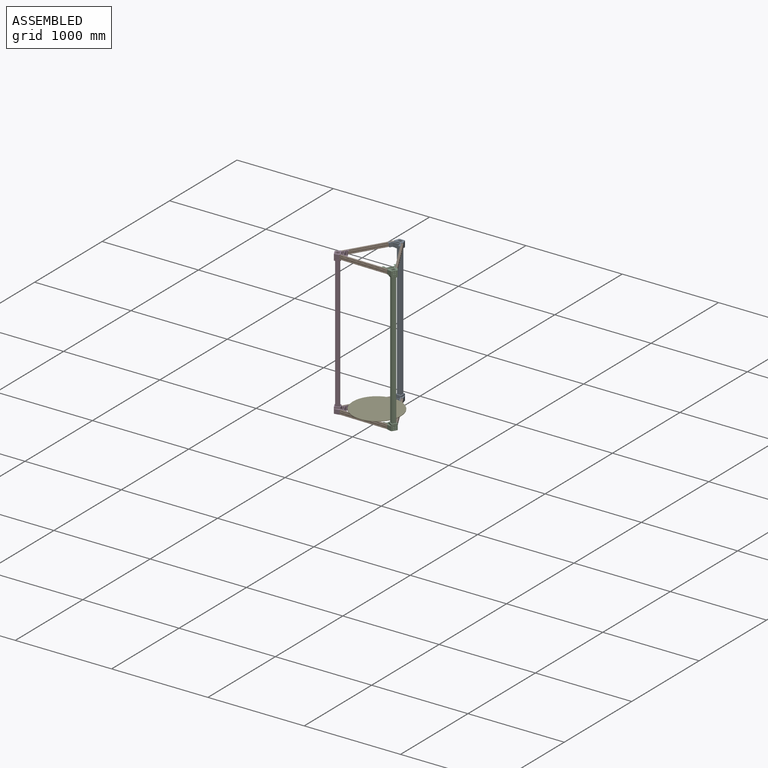
[diagram: assembled view]
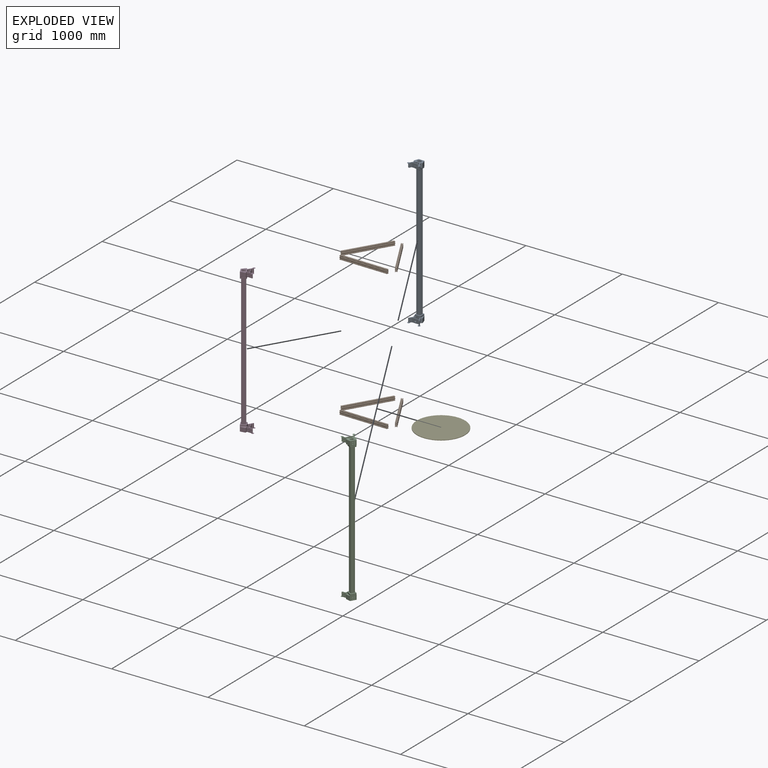
[diagram: exploded view]
GUIDED TOUR — MATED ASSEMBLY WITH SUBASSEMBLIES (Onshape document 57f339af546dad10b447824a, AutoMate assembly 57f339af546dad10b447824a_9c79bd40bd12733219195c9b_e9b3cc5fddb4a0eafcfcd37a_default)

This assembly has 16 component occurrences arranged in 5 top-level units: 1 individual components plus 4 subassemblies (S0, S1, S2, S3). The tour has two levels: first the top level, where each subassembly is treated as one rigid unit; then each subassembly is toured internally in its own section (nesting deeper than one subassembly level is flattened into its subassembly's section).

Components are labeled P0..P15 across the whole record; subassembly units are labeled S0..S3. A mate is a constraint between two units; its type names the relative motion it leaves free:
  FASTENED — locks the two components together rigidly (no relative motion),
  PIN_SLOT — leaves rotation about the listed axis plus translation along a slot free,
  PLANAR — leaves sliding in the plane through the listed point (normal = the listed direction) and rotation about that normal free.
Axis/direction vectors are unit vectors and 'through' points are millimeter coordinates, both in the assembly's world frame.

TOP-LEVEL MATES (between units; each subassembly's internal mates are listed in its own section)
  1. PLANAR "Planar 2": S1 <-> S2, direction (-0.873, -0.487, 0.000) through (192.73, 399.21, -29.00) mm
  2. PIN_SLOT "Pin slot 5": S1 <-> S3, axis (-0.513, -0.858, 0.000) through (-254.05, 194.38, -19.00) mm
  3. PIN_SLOT "Pin slot 8": S1 <-> S0, axis (-0.487, 0.873, 0.000) through (79.72, 622.44, 1436.00) mm
  4. PLANAR "Planar 1": S1 <-> S0, direction (-0.873, -0.487, 0.000) through (192.73, 399.21, -29.00) mm
  5. PLANAR "Planar 5": S1 <-> S3, direction (0.858, -0.513, 0.000) through (-117.24, 403.86, -29.00) mm
  6. PLANAR "Planar 11": S1 <-> S2, direction (-0.873, -0.487, 0.000) through (192.73, 399.21, 1426.00) mm
  7. PIN_SLOT "Pin slot 4": S1 <-> S0, axis (0.487, -0.873, 0.000) through (79.72, 622.44, -19.00) mm
  8. PLANAR "Planar 12": P12 <-> S0, direction (0.000, 0.000, -1.000) through (34.66, 312.58, -6.50) mm
  9. PIN_SLOT "Pin slot 1": S1 <-> S3, axis (-1.000, 0.015, 0.000) through (-216.40, 126.85, -19.00) mm
  10. PIN_SLOT "Pin slot 2": S1 <-> S2, axis (1.000, -0.015, 0.000) through (283.54, 119.35, -19.00) mm
  11. PLANAR "Planar 6": S1 <-> S0, direction (0.858, -0.513, 0.000) through (-117.24, 403.86, -29.00) mm
  12. PIN_SLOT "Pin slot 3": S1 <-> S2, axis (0.487, -0.873, 0.000) through (323.20, 185.72, -19.00) mm
  13. PLANAR "Planar 7": S1 <-> S0, direction (0.858, -0.513, 0.000) through (-117.24, 403.86, 1426.00) mm
  14. PIN_SLOT "Pin slot 7": S1 <-> S2, axis (1.000, -0.015, 0.000) through (283.54, 119.35, 1436.00) mm
  15. PLANAR "Planar 3": S1 <-> S2, direction (0.015, 1.000, 0.000) through (33.72, 133.10, -29.00) mm
  16. PLANAR "Planar 4": S3 <-> S1, direction (-0.015, -1.000, 0.000) through (-187.12, 136.41, -29.00) mm
  17. PIN_SLOT "Pin slot 6": S1 <-> S0, axis (-0.513, -0.858, 0.000) through (2.41, 623.60, 1436.00) mm
  18. PLANAR "Planar 9": S1 <-> S3, direction (0.015, 1.000, 0.000) through (33.72, 133.10, 1426.00) mm
  19. PLANAR "Planar 8": S1 <-> S3, direction (0.858, -0.513, 0.000) through (-117.24, 403.86, 1426.00) mm

TOP-LEVEL ASSEMBLY ORDER
  1. S1 — the base component [order heuristic]
  2. S2 — core [order heuristic]
  3. S0 — core [order heuristic]
  4. S3 — core [order heuristic]
  5. P12 [order verified]
Order-tag legend:
  [order verified] — this step's position reverses a verified removal order: the component was checked to insert without passing through the ones already placed.
  [order heuristic] — the first 4 components form the assembly's core: parts whose collision-free extraction could not be verified, listed in mate-graph order.

Of the 16 component occurrences, 1 carries the full construction recipe — the FeatureScript program that regenerates the part's solid from scratch; the rest are supplied as boundary geometry only. Each toured unit is shown spotlighted twice — assembled, then exploded with a leader line back to its socket (green = recipe-attached component, orange = geometry-only, blue = subassembly unit; the rest desaturated gray).
NOTE — this tour is split across 2 documents so each fits a 32k-token context. This is document 1: the component sections continue in the remaining 1 document, each repeating the header above.
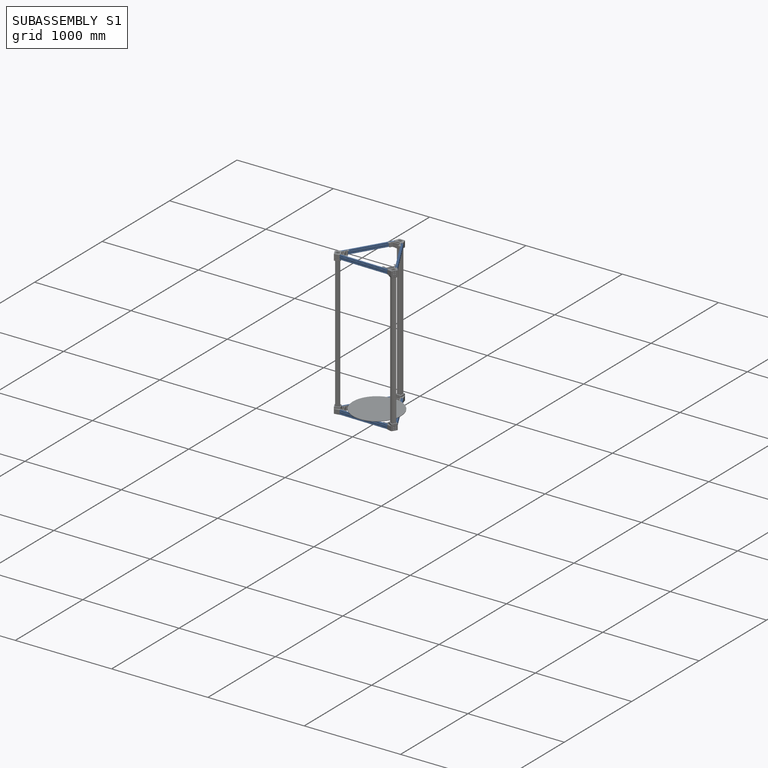
[diagram: subassembly S1 — assembled]
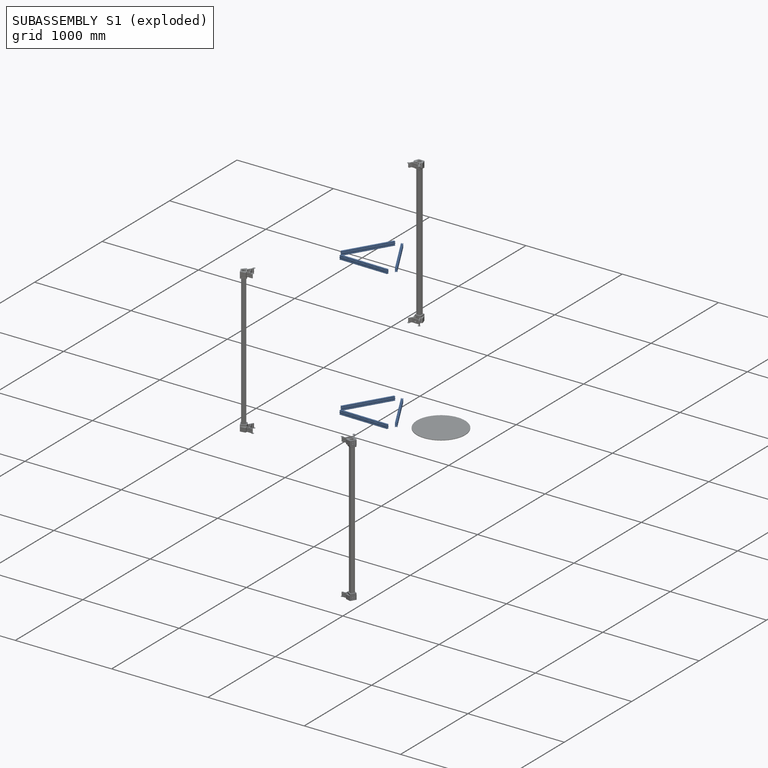
[diagram: subassembly S1 — exploded]
SUBASSEMBLY S1 — 6 components (P1, P2, P5, P7, P8, P15), of which 0 recipe-attached; toured below.
Held by: PLANAR mate "Planar 2" to S2; PIN_SLOT mate "Pin slot 5" to S3; PIN_SLOT mate "Pin slot 8" to S0; PLANAR mate "Planar 1" to S0; PLANAR mate "Planar 5" to S3; PLANAR mate "Planar 11" to S2; PIN_SLOT mate "Pin slot 4" to S0; PIN_SLOT mate "Pin slot 1" to S3; PIN_SLOT mate "Pin slot 2" to S2; PLANAR mate "Planar 6" to S0; PIN_SLOT mate "Pin slot 3" to S2; PLANAR mate "Planar 7" to S0; PIN_SLOT mate "Pin slot 7" to S2; PLANAR mate "Planar 3" to S2; PLANAR mate "Planar 4" to S3; PIN_SLOT mate "Pin slot 6" to S0; PLANAR mate "Planar 9" to S3; PLANAR mate "Planar 8" to S3.
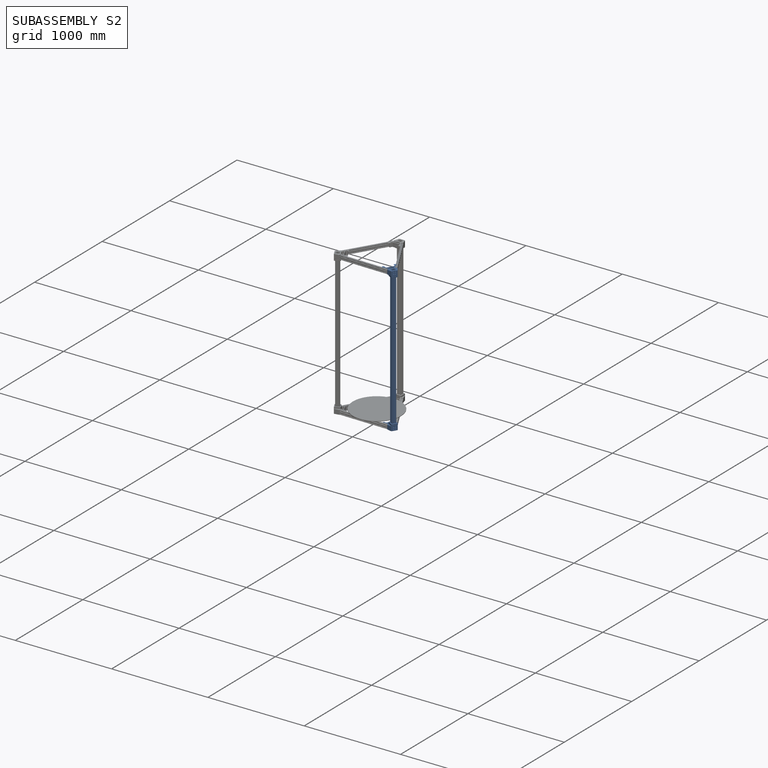
[diagram: subassembly S2 — assembled]
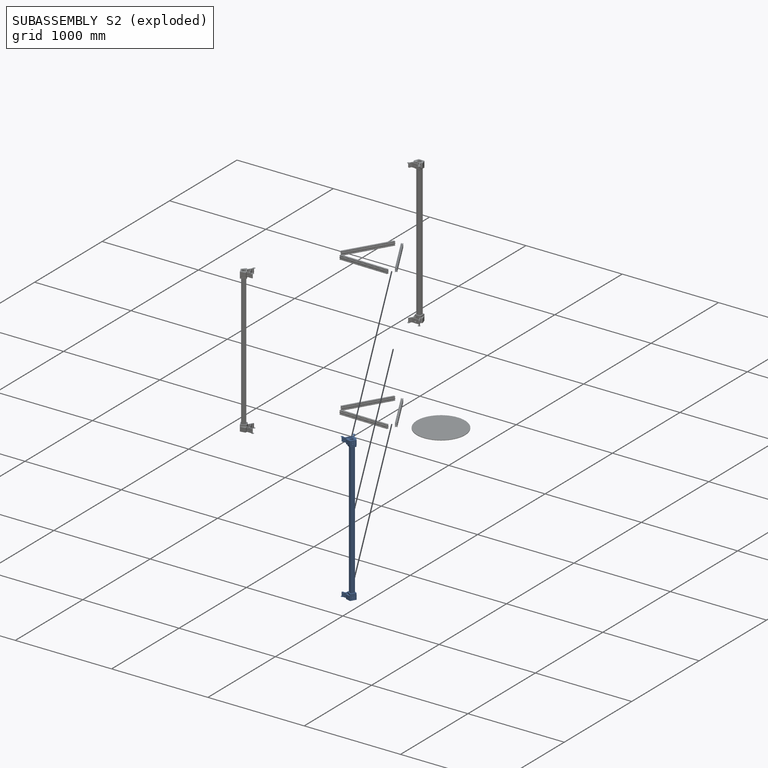
[diagram: subassembly S2 — exploded]
SUBASSEMBLY S2 — 3 components (P3, P10, P13), of which 0 recipe-attached; toured below.
Held by: PLANAR mate "Planar 2" to S1; PLANAR mate "Planar 11" to S1; PIN_SLOT mate "Pin slot 2" to S1; PIN_SLOT mate "Pin slot 3" to S1; PIN_SLOT mate "Pin slot 7" to S1; PLANAR mate "Planar 3" to S1.
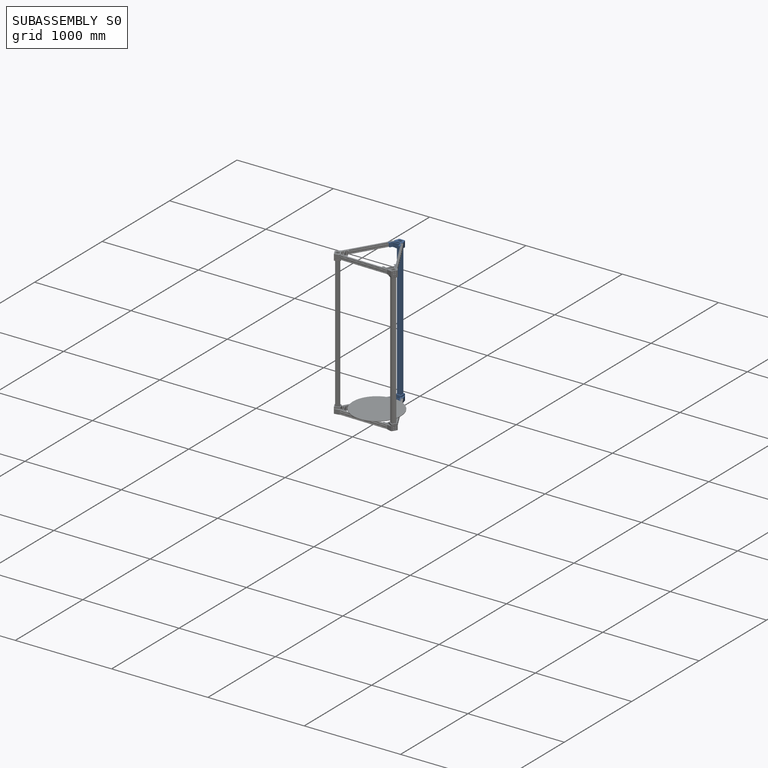
[diagram: subassembly S0 — assembled]
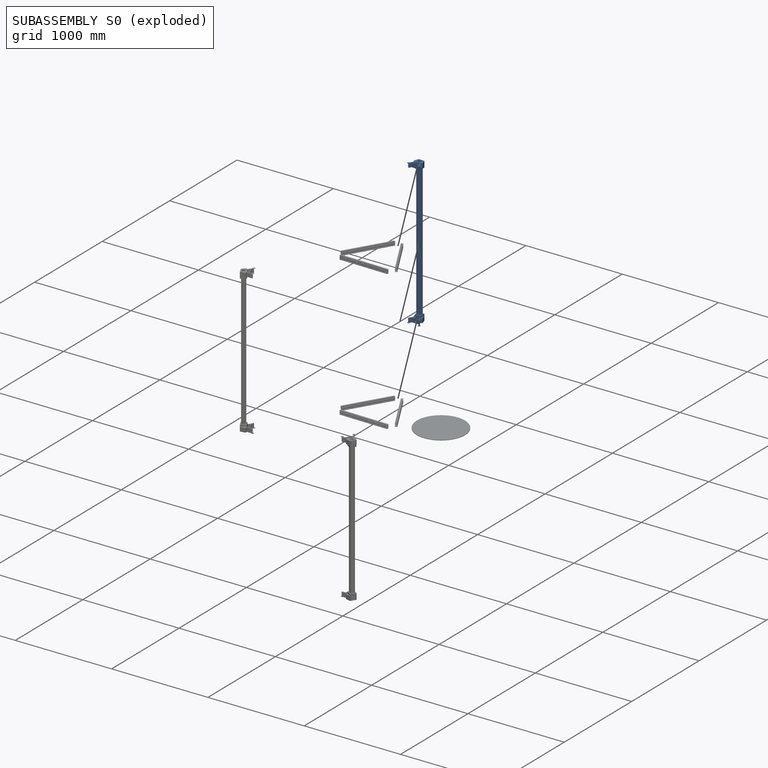
[diagram: subassembly S0 — exploded]
SUBASSEMBLY S0 — 3 components (P0, P6, P14), of which 0 recipe-attached; toured below.
Held by: PIN_SLOT mate "Pin slot 8" to S1; PLANAR mate "Planar 1" to S1; PIN_SLOT mate "Pin slot 4" to S1; PLANAR mate "Planar 12" to P12; PLANAR mate "Planar 6" to S1; PLANAR mate "Planar 7" to S1; PIN_SLOT mate "Pin slot 6" to S1.
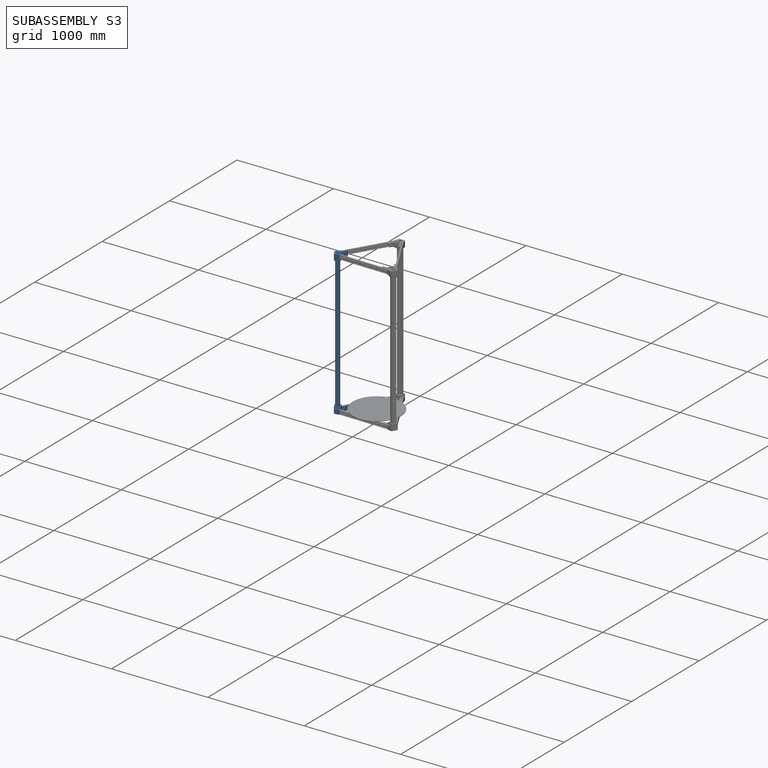
[diagram: subassembly S3 — assembled]
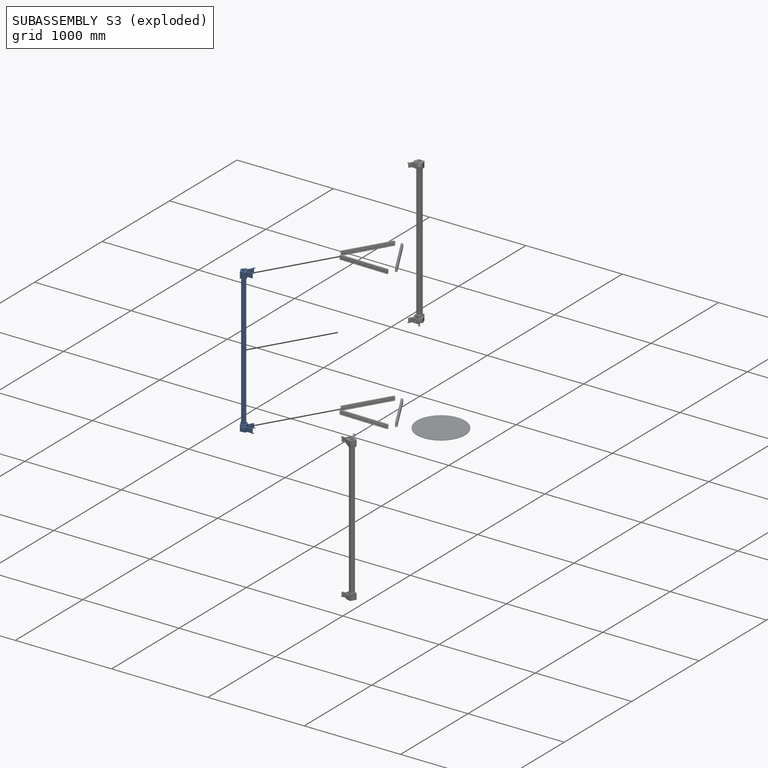
[diagram: subassembly S3 — exploded]
SUBASSEMBLY S3 — 3 components (P4, P9, P11), of which 0 recipe-attached; toured below.
Held by: PIN_SLOT mate "Pin slot 5" to S1; PLANAR mate "Planar 5" to S1; PIN_SLOT mate "Pin slot 1" to S1; PLANAR mate "Planar 4" to S1; PLANAR mate "Planar 9" to S1; PLANAR mate "Planar 8" to S1.
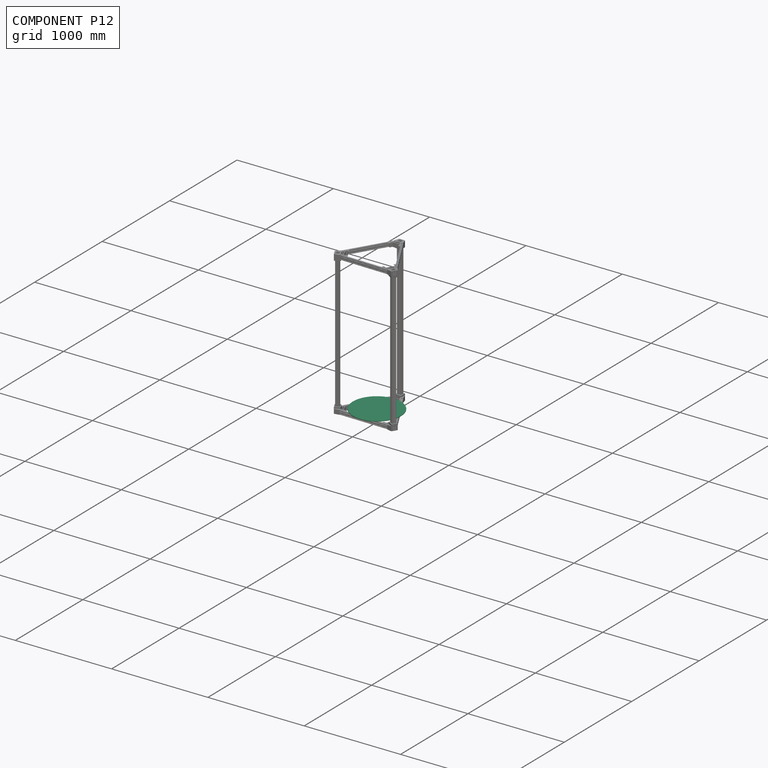
[diagram: component P12 — assembled]
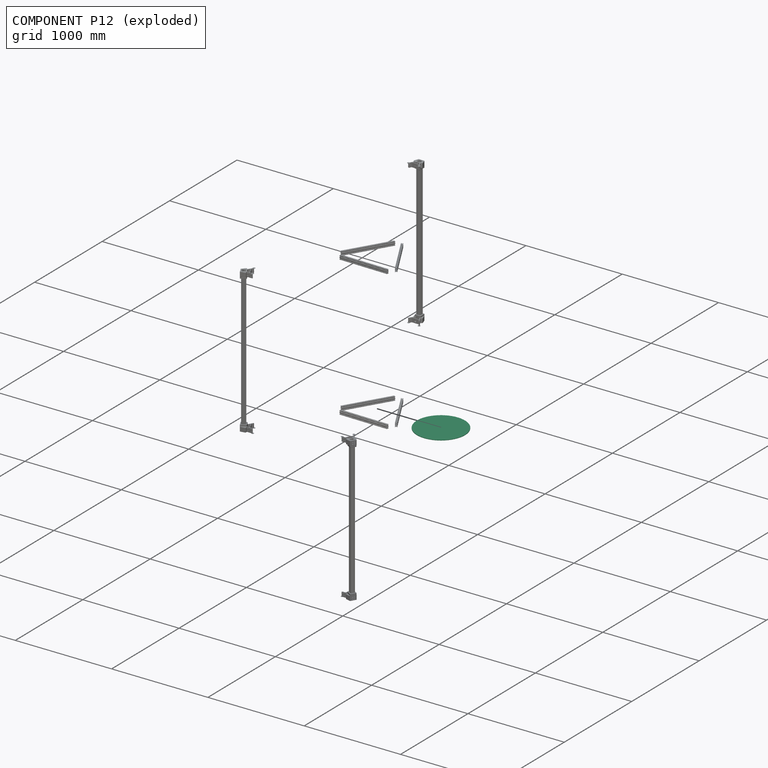
[diagram: component P12 — exploded]
COMPONENT P12 — recipe-attached (CADFS 00271816, mesh-verified: the recipe's output STEP matches this component's geometry to below the mesh-comparison resolution (tessellation chordal tolerance ~1.06 mm)).
Held by: PLANAR mate "Planar 12" to P0.
Construction recipe (FeatureScript — the CAD program that rebuilds this solid; sketch coordinates are in the units given by the * unit suffixes, e.g. mm):

FeatureScript 1511;
import(path : "onshape/std/geometry.fs", version : "1511.0");
import(path : "onshape/std/common.fs", version : "1511.0");
const mm = millimeter;
const VERTEX = EntityType.VERTEX;
const EDGE = EntityType.EDGE;
const FACE = EntityType.FACE;
const BODY = EntityType.BODY;
function v(x, y){return vector(x, y);}
function OD(order){return orderDisambiguation(order);}
function OSD(set){return originalSetDisambiguation(set);}
function TD(topology){return topologyDisambiguation(topology);}
function TDD(query){return trueDependencyDisambiguation(query);}
function sQuery(a, b, c) {return sketchEntityQuery(a, b, c);}

annotation { "Feature Type Name" : "Feature", "Feature Type Description" : "" }
export const myFeature = defineFeature(function(context is Context, id is Id, definition is map)
    precondition{}
    {
        {
            var Q0;
            Q0=qCreatedBy(makeId("Top.planeOp"),FACE);
            var sketch = newSketch(context, id + "F0", { "sketchPlane" : qUnion([Q0])});
            skCircle(sketch, "E0", {"center": v(0, 0) * mm, "radius": 250 * mm});
            skSolve(sketch);
        }
        {
            var Q0;
            Q0=qSketchRegion(id+"F0",true);
            extrude(context, id + "F1", {"entities" : qUnion([Q0]), "depth" : 6.5 * mm});
        }
        {
            var Q0;
            Q0=makeQuery(id+"F1.opExtrude","CAP_EDGE",EDGE,{"disambiguationData":[OSD([sQuery(id+"F0.wireOp",EDGE,"E0")])],"isStart":false});
            var Q1;
            Q1=makeQuery(id+"F1.opExtrude","CAP_EDGE",EDGE,{"disambiguationData":[OSD([sQuery(id+"F0.wireOp",EDGE,"E0")])],"isStart":true});
            fillet(context, id + "F2", {"entities" : qUnion([Q0, Q1]), "radius" : 1.5 * mm, "tangentPropagation" : true, "allowEdgeOverflow" : false});
        }
    });
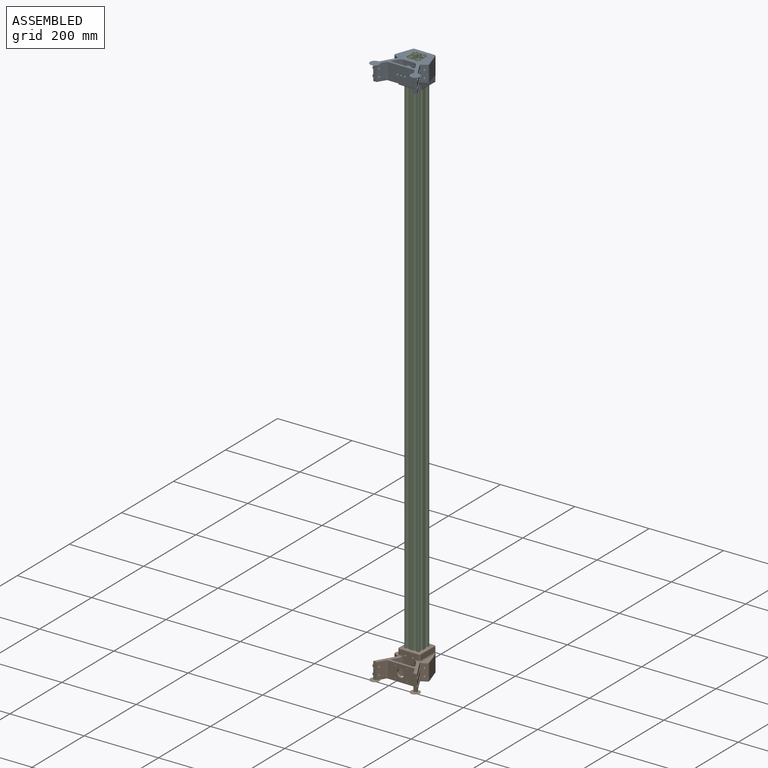
[diagram: subassembly S0 — assembled view]
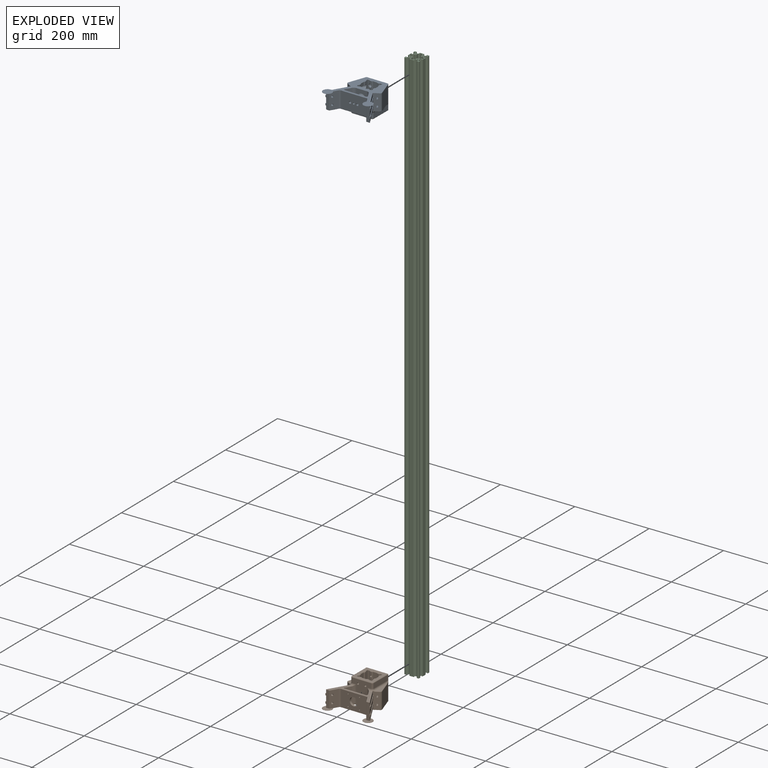
[diagram: subassembly S0 — exploded view]
SUBASSEMBLY S0 TOUR — 3 components, shown here in isolation at its own camera.

INTERNAL MATES
  1. FASTENED "Fastened 1": P6 <-> P14, direction (-0.015, -1.000, 0.000) through (41.74, 668.06, -51.50) mm
  2. FASTENED "Fastened 2": P0 <-> P14, direction (-0.015, -1.000, 0.000) through (41.74, 668.06, 1448.50) mm
  3. FASTENED "Fastened 2": P0 <-> P14, direction (-0.015, -1.000, 0.000) through (41.74, 668.06, 1448.50) mm
  4. FASTENED "Fastened 1": P6 <-> P14, direction (-0.015, -1.000, 0.000) through (41.74, 668.06, -51.50) mm

ASSEMBLY ORDER (within the subassembly)
  1. P14 — the base component [order verified]
  2. P6 [order verified]
  3. P0 [order verified]
Order-tag legend:
  [order verified] — this step's position reverses a verified removal order: the component was checked to insert without passing through the ones already placed.
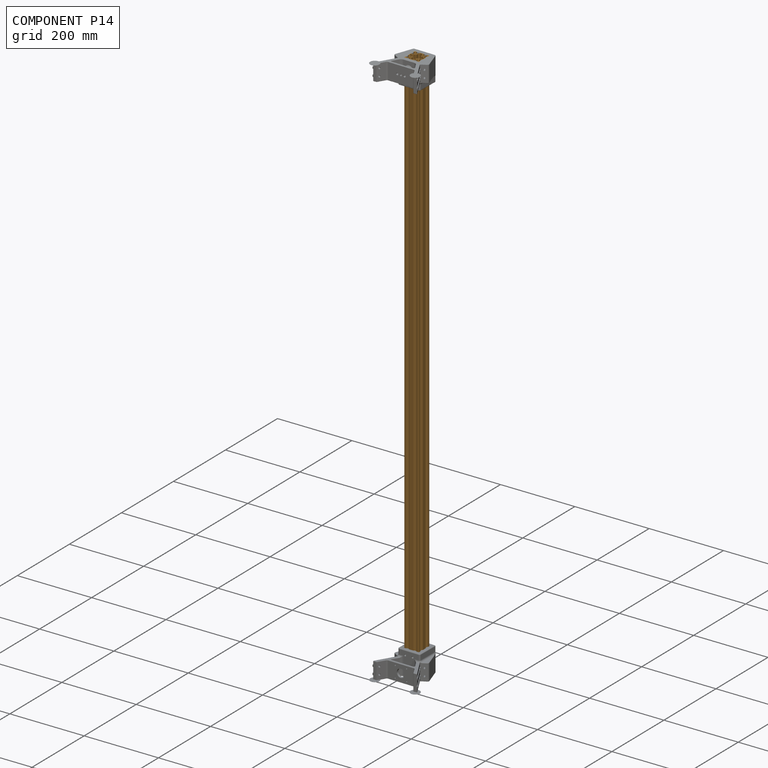
[diagram: component P14 — assembled]
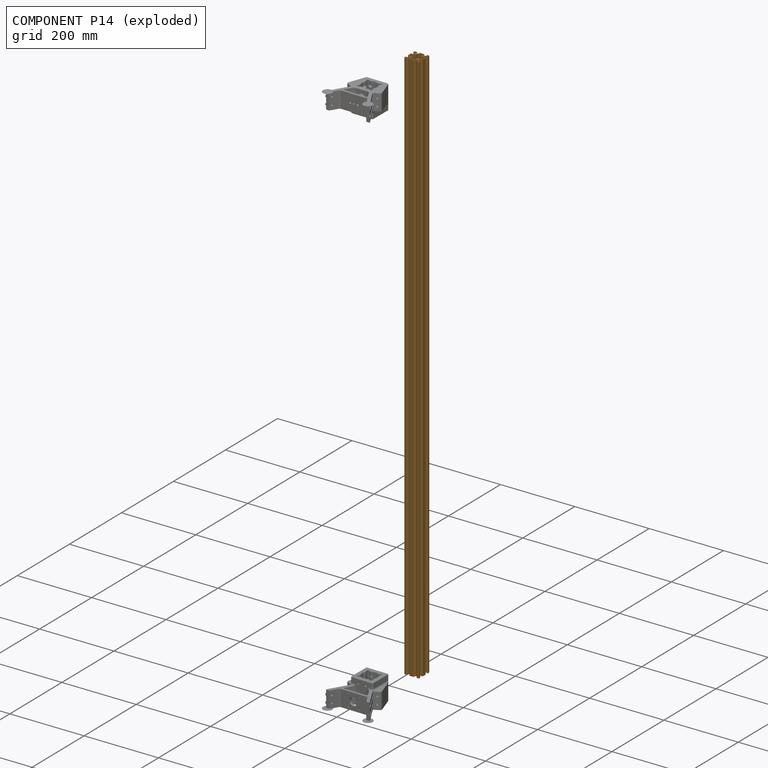
[diagram: component P14 — exploded]
COMPONENT P14 — geometry summary (no construction recipe available for this part):
  bounding box: 1500.0 x 53.5 x 53.5 mm
  B-rep topology: 1 solid, 166 faces, 992 edges
  volume: 687694 mm^3 (16% of its bounding box)
  symmetry: 2-fold rotationally symmetric about the x axis; 2-fold rotationally symmetric about the y axis; revolution-symmetric about the z axis through its bounding-box center; mirror-symmetric across its x mid-plane, y mid-plane, z mid-plane
Held by: FASTENED mate "Fastened 1" to P6; FASTENED mate "Fastened 2" to P0; FASTENED mate "Fastened 2" to P0; FASTENED mate "Fastened 1" to P6.
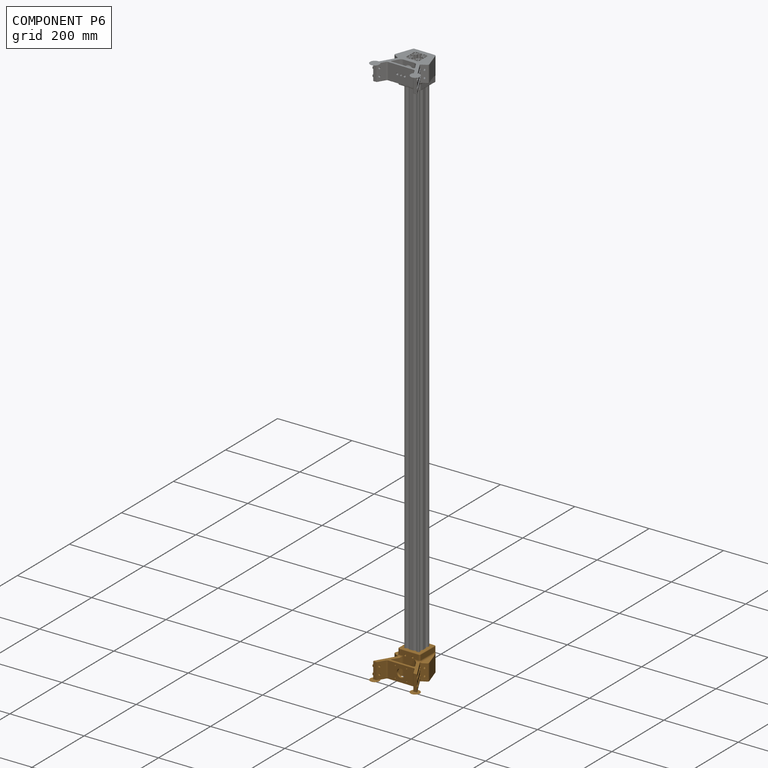
[diagram: component P6 — assembled]
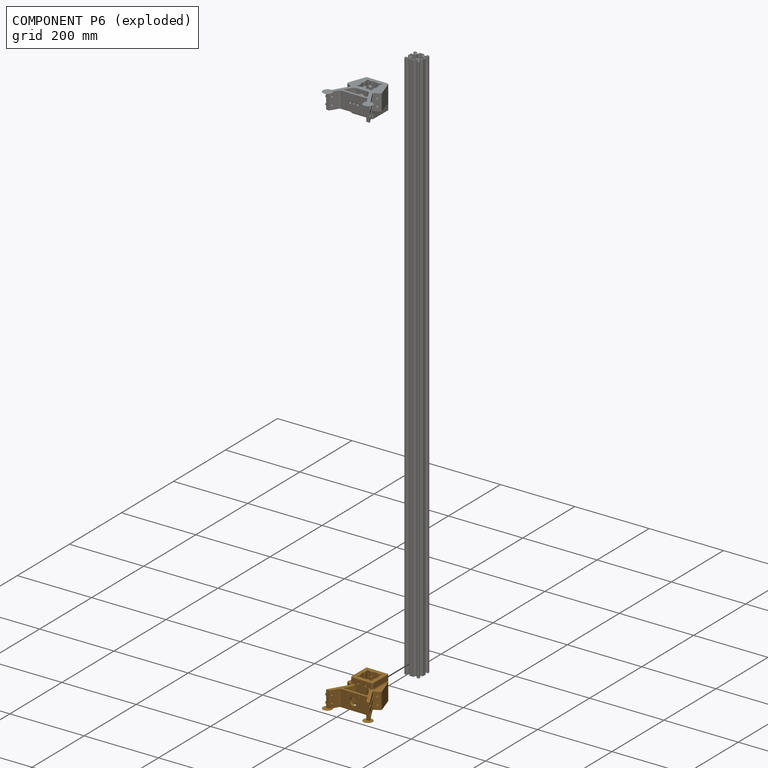
[diagram: component P6 — exploded]
COMPONENT P6 — geometry summary (no construction recipe available for this part):
  bounding box: 135.0 x 129.0 x 67.0 mm
  B-rep topology: 1 solid, 270 faces, 1492 edges
  volume: 234750 mm^3 (20% of its bounding box)
  symmetry: mirror-symmetric across its x mid-plane
Held by: FASTENED mate "Fastened 1" to P14; FASTENED mate "Fastened 1" to P14.
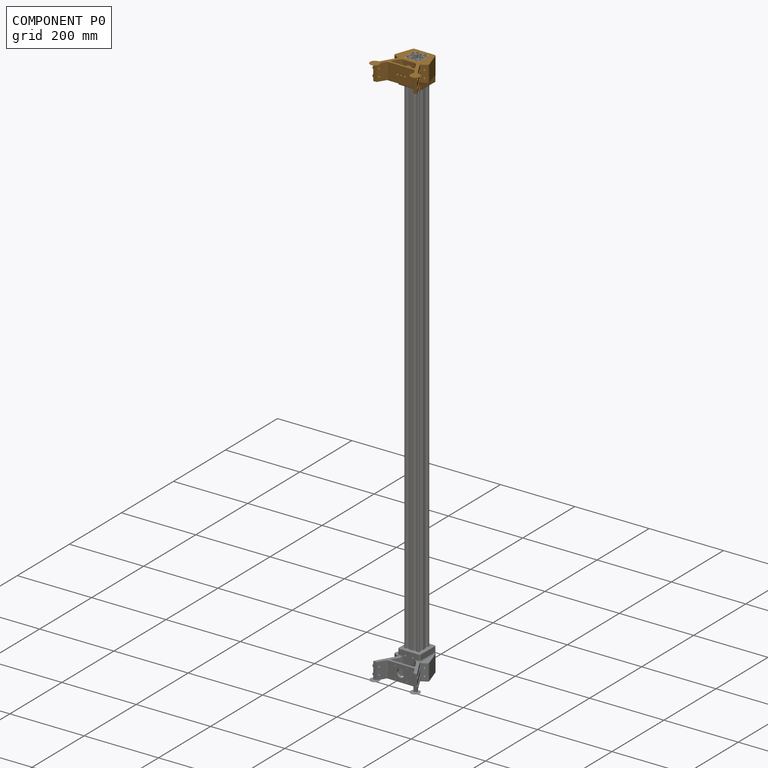
[diagram: component P0 — assembled]
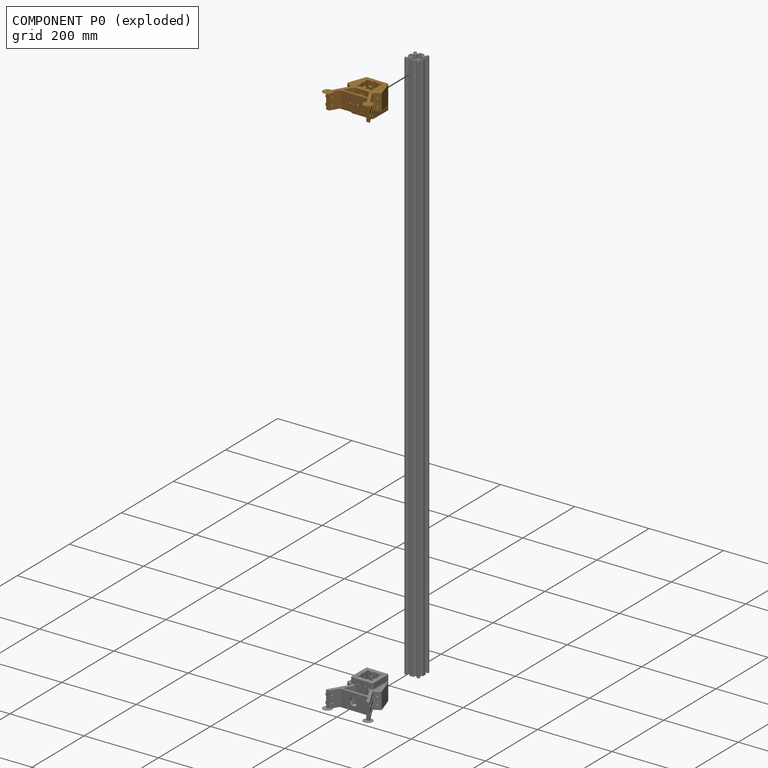
[diagram: component P0 — exploded]
COMPONENT P0 — geometry summary (no construction recipe available for this part):
  bounding box: 135.0 x 129.0 x 67.0 mm
  B-rep topology: 1 solid, 277 faces, 1530 edges
  volume: 238581 mm^3 (20% of its bounding box)
  symmetry: mirror-symmetric across its x mid-plane
Held by: FASTENED mate "Fastened 2" to P14; FASTENED mate "Fastened 2" to P14.
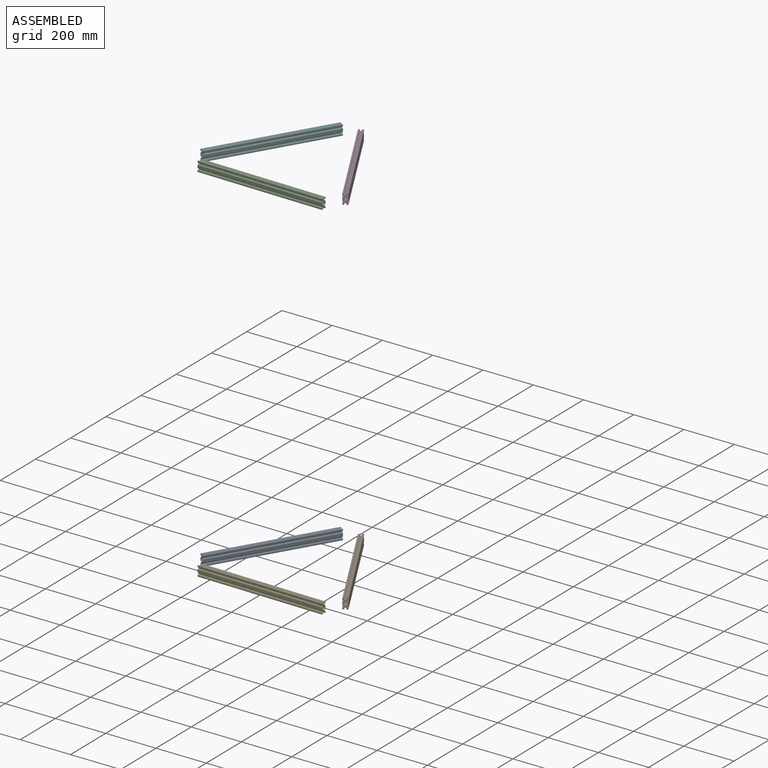
[diagram: subassembly S1 — assembled view]
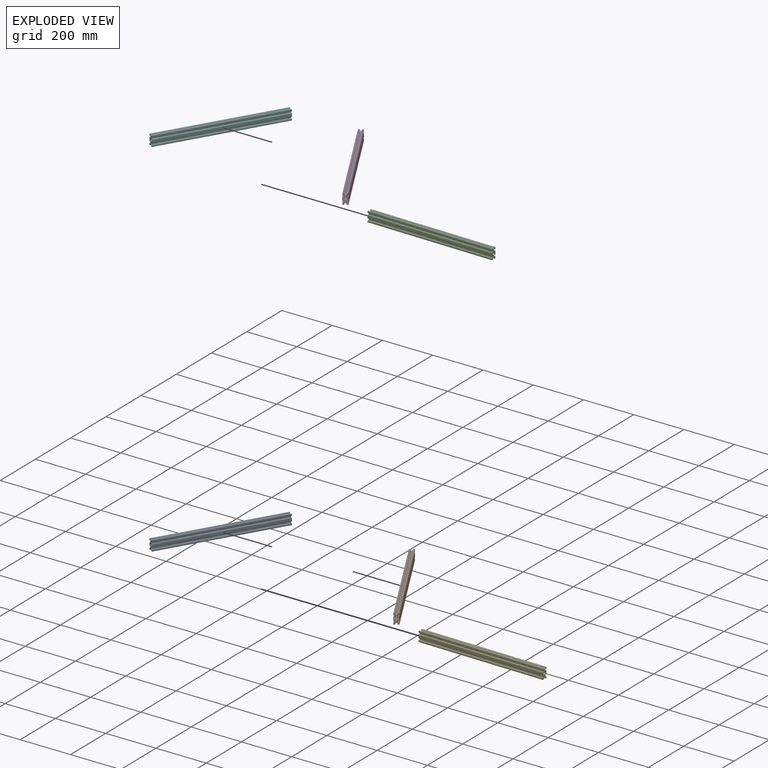
[diagram: subassembly S1 — exploded view]
SUBASSEMBLY S1 TOUR — 6 components, shown here in isolation at its own camera.
No internal mates are recorded for this subassembly; its components are held by their stored placements.

ASSEMBLY ORDER (within the subassembly)
  1. P7 — the base component [order verified]
  2. P2 [order verified]
  3. P1 [order verified]
  4. P15 [order verified]
  5. P5 [order verified]
  6. P8 [order verified]
Order-tag legend:
  [order verified] — this step's position reverses a verified removal order: the component was checked to insert without passing through the ones already placed.
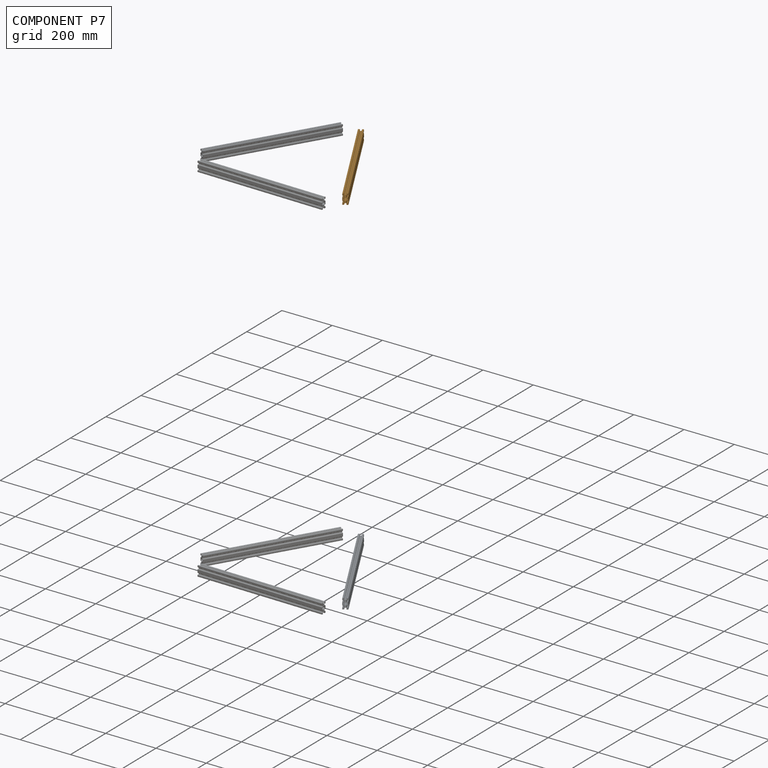
[diagram: component P7 — assembled]
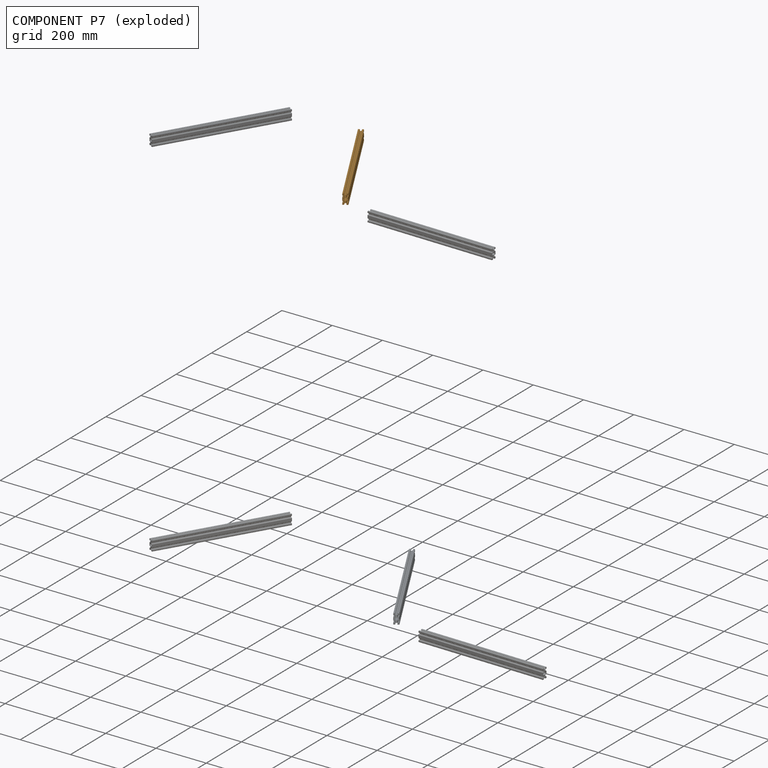
[diagram: component P7 — exploded]
COMPONENT P7 — geometry summary (no construction recipe available for this part):
  bounding box: 500.0 x 40.0 x 20.0 mm
  B-rep topology: 1 solid, 114 faces, 672 edges
  volume: 149995 mm^3 (37% of its bounding box)
  symmetry: 2-fold rotationally symmetric about the x axis; 2-fold rotationally symmetric about the y axis; 2-fold rotationally symmetric about the z axis; mirror-symmetric across its x mid-plane, y mid-plane, z mid-plane
Held by: no mates (free).
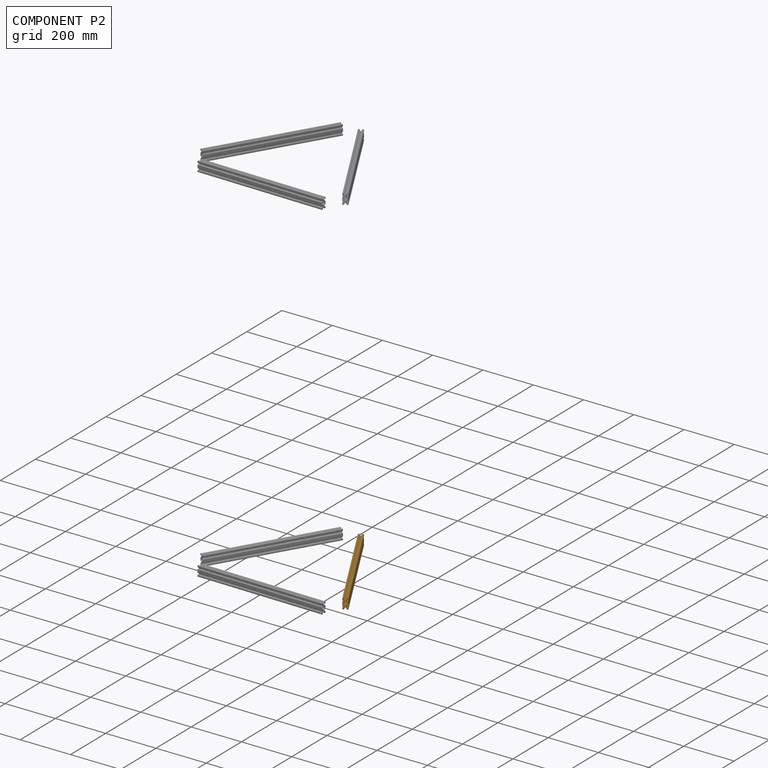
[diagram: component P2 — assembled]
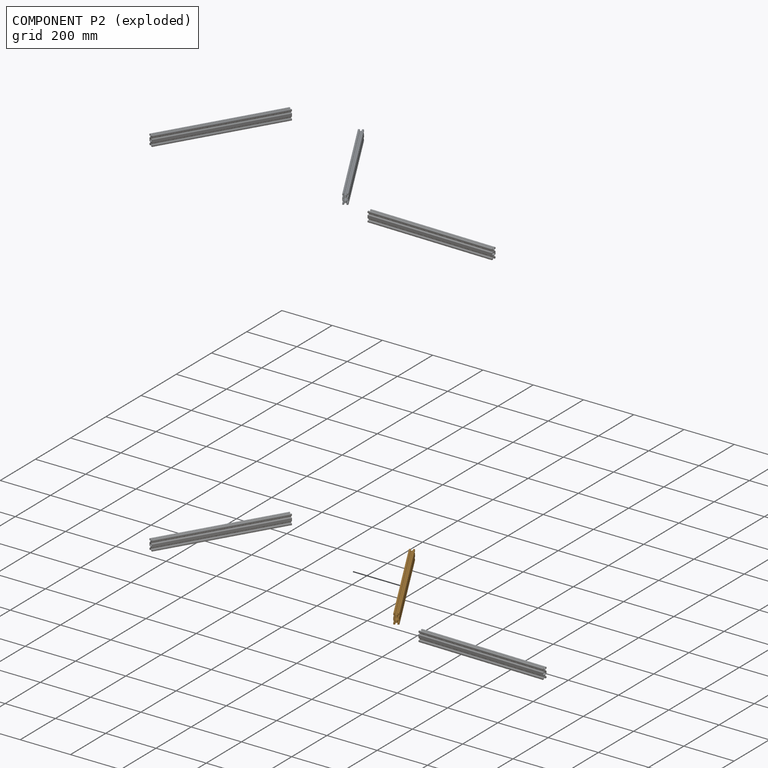
[diagram: component P2 — exploded]
COMPONENT P2 — geometry summary (no construction recipe available for this part):
  bounding box: 500.0 x 40.0 x 20.0 mm
  B-rep topology: 1 solid, 114 faces, 672 edges
  volume: 149995 mm^3 (37% of its bounding box)
  symmetry: 2-fold rotationally symmetric about the x axis; 2-fold rotationally symmetric about the y axis; 2-fold rotationally symmetric about the z axis; mirror-symmetric across its x mid-plane, y mid-plane, z mid-plane
Held by: no mates (free).
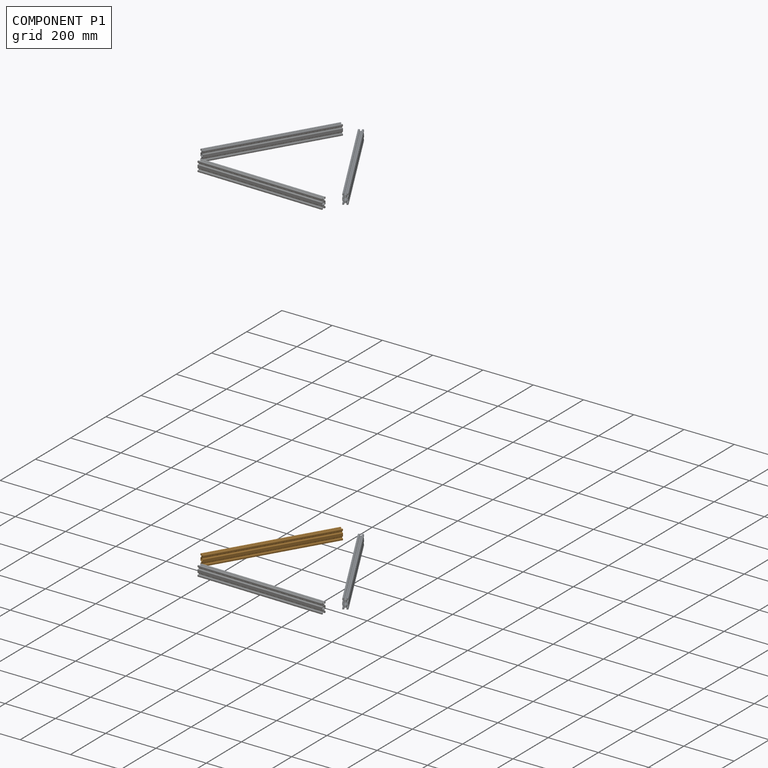
[diagram: component P1 — assembled]
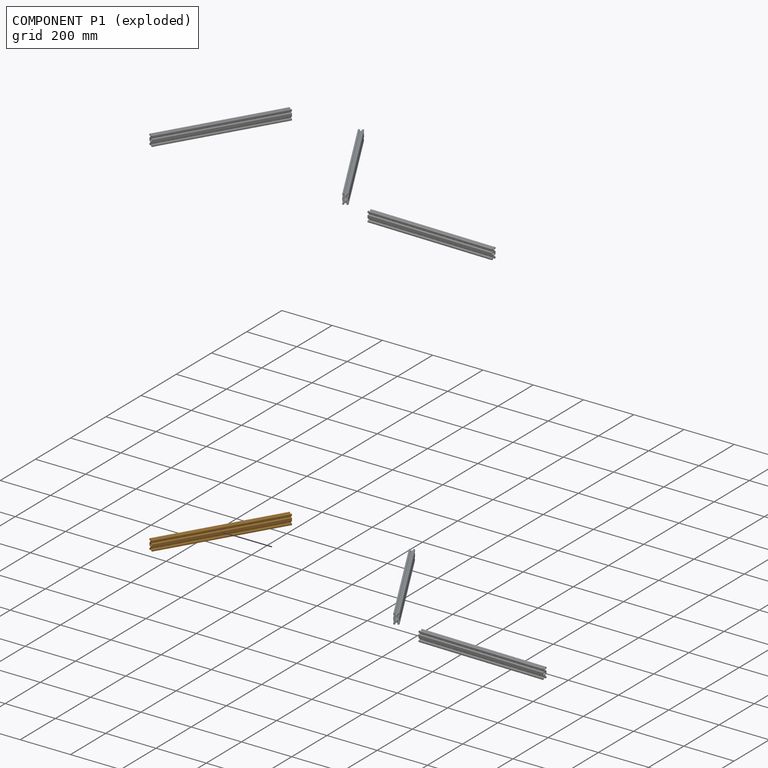
[diagram: component P1 — exploded]
COMPONENT P1 — geometry summary (no construction recipe available for this part):
  bounding box: 500.0 x 40.0 x 20.0 mm
  B-rep topology: 1 solid, 114 faces, 672 edges
  volume: 149995 mm^3 (37% of its bounding box)
  symmetry: 2-fold rotationally symmetric about the x axis; 2-fold rotationally symmetric about the y axis; 2-fold rotationally symmetric about the z axis; mirror-symmetric across its x mid-plane, y mid-plane, z mid-plane
Held by: no mates (free).
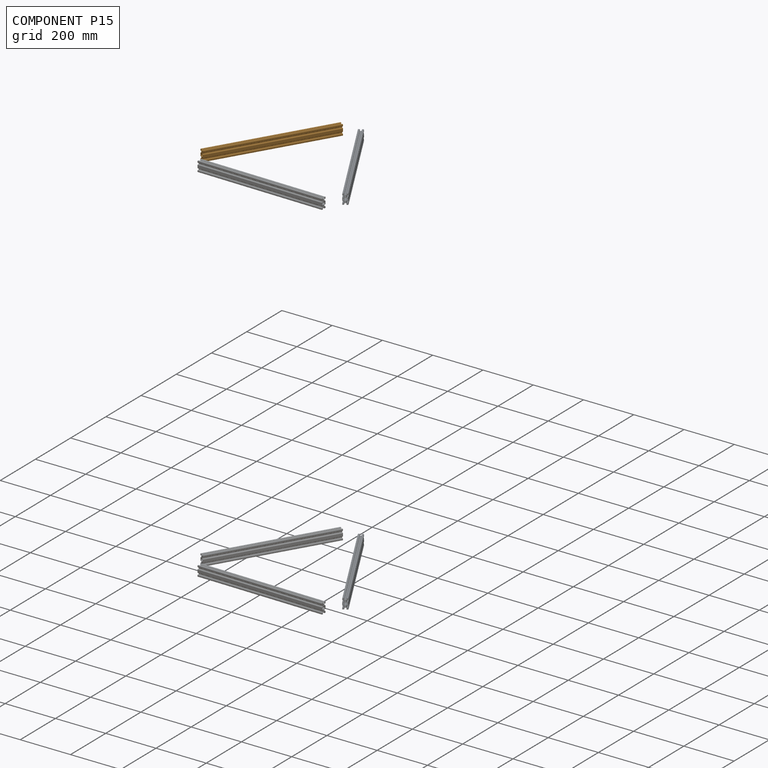
[diagram: component P15 — assembled]
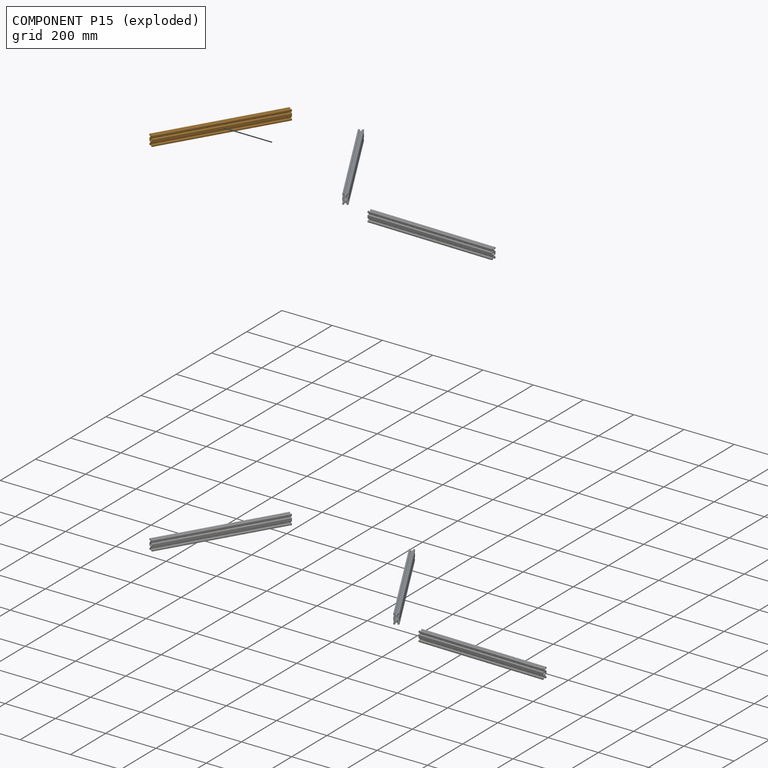
[diagram: component P15 — exploded]
COMPONENT P15 — geometry summary (no construction recipe available for this part):
  bounding box: 500.0 x 40.0 x 20.0 mm
  B-rep topology: 1 solid, 114 faces, 672 edges
  volume: 149995 mm^3 (37% of its bounding box)
  symmetry: 2-fold rotationally symmetric about the x axis; 2-fold rotationally symmetric about the y axis; 2-fold rotationally symmetric about the z axis; mirror-symmetric across its x mid-plane, y mid-plane, z mid-plane
Held by: no mates (free).
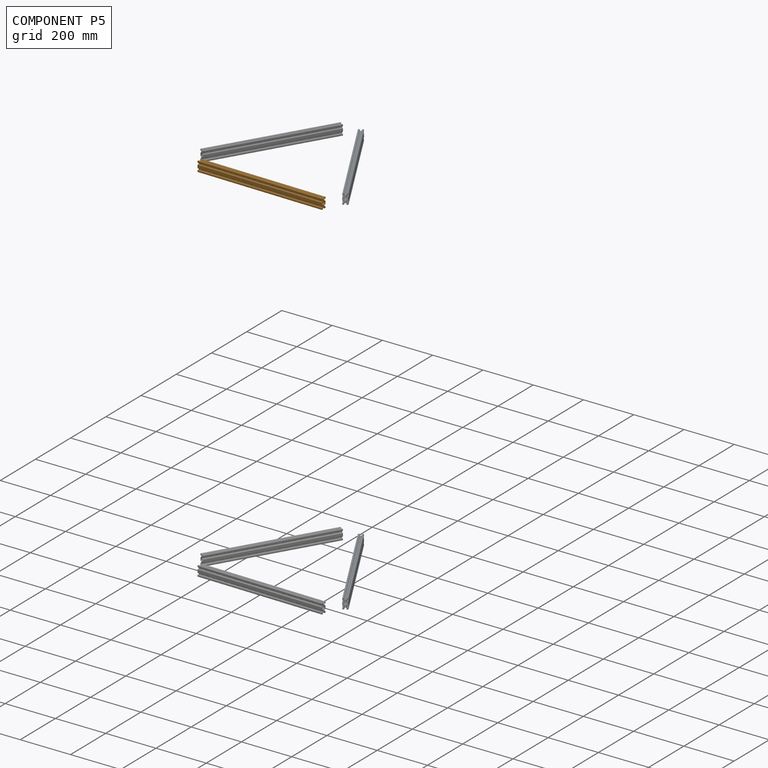
[diagram: component P5 — assembled]
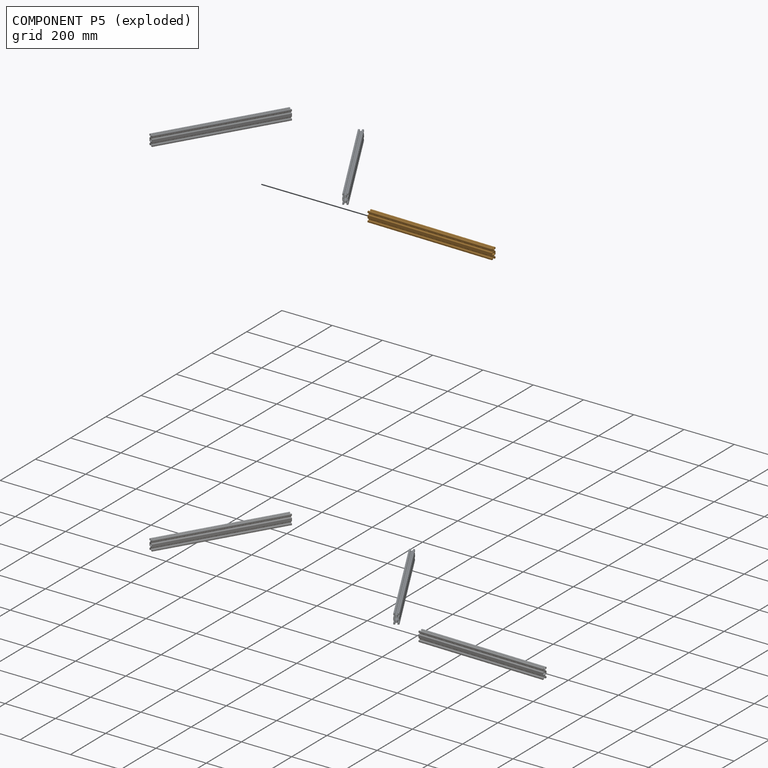
[diagram: component P5 — exploded]
COMPONENT P5 — geometry summary (no construction recipe available for this part):
  bounding box: 500.0 x 40.0 x 20.0 mm
  B-rep topology: 1 solid, 114 faces, 672 edges
  volume: 149995 mm^3 (37% of its bounding box)
  symmetry: 2-fold rotationally symmetric about the x axis; 2-fold rotationally symmetric about the y axis; 2-fold rotationally symmetric about the z axis; mirror-symmetric across its x mid-plane, y mid-plane, z mid-plane
Held by: no mates (free).
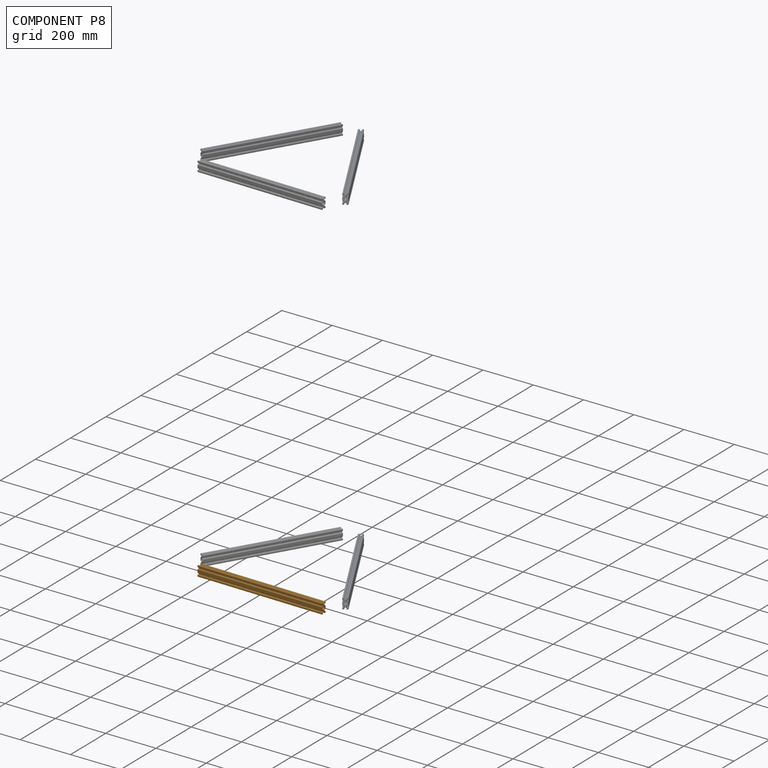
[diagram: component P8 — assembled]
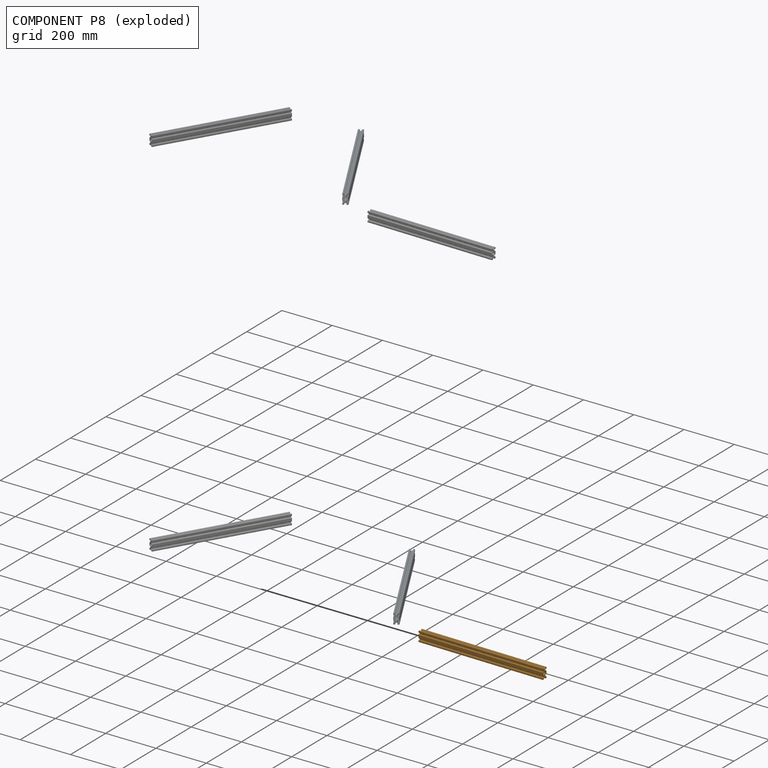
[diagram: component P8 — exploded]
COMPONENT P8 — geometry summary (no construction recipe available for this part):
  bounding box: 500.0 x 40.0 x 20.0 mm
  B-rep topology: 1 solid, 114 faces, 672 edges
  volume: 149995 mm^3 (37% of its bounding box)
  symmetry: 2-fold rotationally symmetric about the x axis; 2-fold rotationally symmetric about the y axis; 2-fold rotationally symmetric about the z axis; mirror-symmetric across its x mid-plane, y mid-plane, z mid-plane
Held by: no mates (free).
